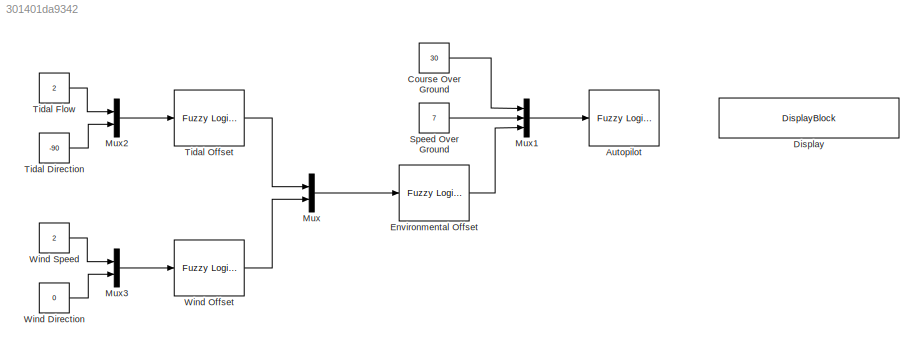
MODEL slx_301401da9342
KIND model
CONFIG AbsTol = auto
CONFIG EnableMultiTasking = off
CONFIG FixedStep = auto
CONFIG MaxStep = auto
CONFIG MinStep = auto
CONFIG RelTol = 1e-3
CONFIG SampleTimeConstraint = Unconstrained
CONFIG Solver = VariableStepAuto
CONFIG SolverName = VariableStepAuto
CONFIG StartTime = 0.0
CONFIG StopTime = 10.0
BLOCK [Reference] Autopilot  REF=fuzblock/Fuzzy Logic   (lib defined in mdl_858b3b3e7478)
Controller
  Ports = [1, 1]
  SourceBlock = fuzblock/Fuzzy Logic \nController
  SourceProductBaseCode = FL
  SourceProductName = Fuzzy Logic Toolbox
  SourceType = Fuzzy Inference System
BLOCK [Constant] Course Over Ground
  Value = 30
BLOCK [DisplayBlock] Display
  Format = short
  LabelPosition = Hide
  Transparency = 1
BLOCK [Reference] Environmental Offset  REF=fuzblock/Fuzzy Logic   (lib defined in mdl_858b3b3e7478)
Controller
  Ports = [1, 1]
  SourceBlock = fuzblock/Fuzzy Logic \nController
  SourceProductBaseCode = FL
  SourceProductName = Fuzzy Logic Toolbox
  SourceType = Fuzzy Inference System
BLOCK [Mux] Mux
  DisplayOption = bar
  Inputs = 2
  Ports = [2, 1]
BLOCK [Mux] Mux1
  DisplayOption = bar
  Inputs = 3
  Ports = [3, 1]
BLOCK [Mux] Mux2
  DisplayOption = bar
  Inputs = 2
  Ports = [2, 1]
BLOCK [Mux] Mux3
  DisplayOption = bar
  Inputs = 2
  Ports = [2, 1]
BLOCK [Constant] Speed Over Ground
  Value = 7
BLOCK [Constant] Tidal Direction
  Value = -90
BLOCK [Constant] Tidal Flow
  Value = 2
BLOCK [Reference] Tidal Offset  REF=fuzblock/Fuzzy Logic   (lib defined in mdl_858b3b3e7478)
Controller
  Ports = [1, 1]
  SourceBlock = fuzblock/Fuzzy Logic \nController
  SourceProductBaseCode = FL
  SourceProductName = Fuzzy Logic Toolbox
  SourceType = Fuzzy Inference System
BLOCK [Constant] Wind Direction
  Value = 0
BLOCK [Reference] Wind Offset  REF=fuzblock/Fuzzy Logic   (lib defined in mdl_858b3b3e7478)
Controller
  Ports = [1, 1]
  SourceBlock = fuzblock/Fuzzy Logic \nController
  SourceProductBaseCode = FL
  SourceProductName = Fuzzy Logic Toolbox
  SourceType = Fuzzy Inference System
BLOCK [Constant] Wind Speed
  Value = 2
LINE Course Over Ground:1 -> Mux1:1
LINE Environmental Offset:1 -> Mux1:3
LINE Mux1:1 -> Autopilot:1
LINE Mux2:1 -> Tidal Offset:1
LINE Mux3:1 -> Wind Offset:1
LINE Mux:1 -> Environmental Offset:1
LINE Speed Over Ground:1 -> Mux1:2
LINE Tidal Direction:1 -> Mux2:2
LINE Tidal Flow:1 -> Mux2:1
LINE Tidal Offset:1 -> Mux:1
LINE Wind Direction:1 -> Mux3:2
LINE Wind Offset:1 -> Mux:2
LINE Wind Speed:1 -> Mux3:1
